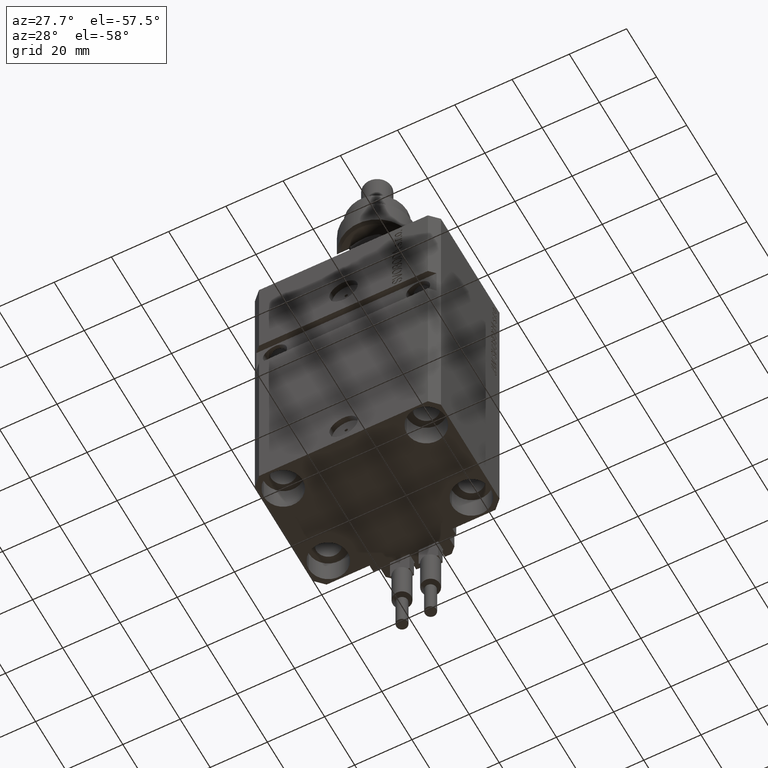
[diagram: clean part render]
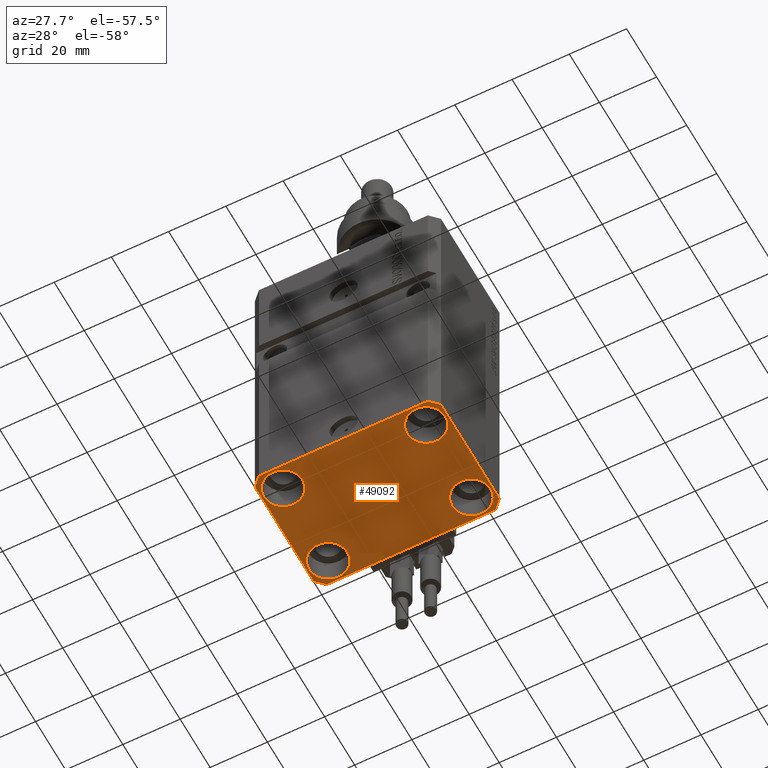
[diagram: same view with one face highlighted and labeled with its STEP entity id]
A machine part, auxiliary view. The second image highlights one B-rep face of the part: STEP entity #49092.
In plain terms, the highlighted planar face has unit normal (0, 0, 1).
Its self-contained STEP definition (entity closure, byte-faithful):
#345 = LINE ( 'NONE', #39127, #19340 ) ;
#823 = VERTEX_POINT ( 'NONE', #2900 ) ;
#1016 = VERTEX_POINT ( 'NONE', #45491 ) ;
#1098 = VERTEX_POINT ( 'NONE', #38277 ) ;
#1769 = FACE_BOUND ( 'NONE', #45170, .T. ) ;
#2019 = EDGE_LOOP ( 'NONE', ( #44913, #29116, #49864, #32896, #20332, #41818, #10734, #4032 ) ) ;
#2529 = LINE ( 'NONE', #45938, #19866 ) ;
#2900 = CARTESIAN_POINT ( 'NONE',  ( 32.49999999999651124, -19.49999999999949196, -107.0000000000000000 ) ) ;
#3351 = DIRECTION ( 'NONE',  ( 1.000000000000000000, 0.000000000000000000, 0.000000000000000000 ) ) ;
#3425 = CARTESIAN_POINT ( 'NONE',  ( -29.49999999999650413, 22.49999999999949907, -107.0000000000000000 ) ) ;
#4032 = ORIENTED_EDGE ( 'NONE', *, *, #46612, .F. ) ;
#4190 = DIRECTION ( 'NONE',  ( -1.000000000000000000, -2.352167425053553784E-16, 0.000000000000000000 ) ) ;
#4330 = CARTESIAN_POINT ( 'NONE',  ( -32.49999999999650413, 19.49999999999949907, -107.0000000000000000 ) ) ;
#4975 = VERTEX_POINT ( 'NONE', #19146 ) ;
#5864 = DIRECTION ( 'NONE',  ( 1.000000000000000000, 0.000000000000000000, -0.000000000000000000 ) ) ;
#6143 = CARTESIAN_POINT ( 'NONE',  ( 32.49999999999651124, -19.49999999999949196, -107.0000000000000000 ) ) ;
#7772 = DIRECTION ( 'NONE',  ( -0.000000000000000000, -0.000000000000000000, 1.000000000000000000 ) ) ;
#8206 = ORIENTED_EDGE ( 'NONE', *, *, #44151, .T. ) ;
#8214 = AXIS2_PLACEMENT_3D ( 'NONE', #22283, #46196, #22543 ) ;
#8545 = AXIS2_PLACEMENT_3D ( 'NONE', #12356, #40100, #44217 ) ;
#8752 = ORIENTED_EDGE ( 'NONE', *, *, #28209, .T. ) ;
#9048 = CARTESIAN_POINT ( 'NONE',  ( -29.49999999999650413, -22.49999999999949907, -107.0000000000000000 ) ) ;
#9379 = CIRCLE ( 'NONE', #8545, 6.749999999958452790 ) ;
#9412 = CARTESIAN_POINT ( 'NONE',  ( 29.49999999999650413, -22.49999999999949196, -107.0000000000000000 ) ) ;
#9445 = DIRECTION ( 'NONE',  ( -0.000000000000000000, -0.000000000000000000, 1.000000000000000000 ) ) ;
#9467 = CARTESIAN_POINT ( 'NONE',  ( -31.75000000002253842, 15.00000000000000000, -107.0000000000000000 ) ) ;
#9599 = CIRCLE ( 'NONE', #16144, 6.750000000022533087 ) ;
#9608 = CARTESIAN_POINT ( 'NONE',  ( -31.75000000004154899, -15.00000000000000000, -107.0000000000000000 ) ) ;
#10567 = DIRECTION ( 'NONE',  ( 0.7071067811865474617, -0.7071067811865474617, 0.000000000000000000 ) ) ;
#10734 = ORIENTED_EDGE ( 'NONE', *, *, #35904, .F. ) ;
#10973 = VERTEX_POINT ( 'NONE', #38311 ) ;
#11018 = DIRECTION ( 'NONE',  ( 1.000000000000000000, 0.000000000000000000, 0.000000000000000000 ) ) ;
#11127 = VERTEX_POINT ( 'NONE', #48312 ) ;
#11134 = VERTEX_POINT ( 'NONE', #39834 ) ;
#11218 = EDGE_CURVE ( 'NONE', #11485, #1016, #38589, .T. ) ;
#11234 = EDGE_CURVE ( 'NONE', #50690, #4975, #27429, .T. ) ;
#11485 = VERTEX_POINT ( 'NONE', #34068 ) ;
#12079 = CARTESIAN_POINT ( 'NONE',  ( -32.49999999999650413, -19.49999999999949907, -107.0000000000000000 ) ) ;
#12356 = CARTESIAN_POINT ( 'NONE',  ( 24.99999999999999645, 15.00000000000000888, -107.0000000000000000 ) ) ;
#12878 = CARTESIAN_POINT ( 'NONE',  ( 18.25000000002253842, -15.00000000000000000, -107.0000000000000000 ) ) ;
#13380 = VERTEX_POINT ( 'NONE', #9467 ) ;
#13692 = EDGE_CURVE ( 'NONE', #4975, #823, #44879, .T. ) ;
#13953 = EDGE_CURVE ( 'NONE', #1098, #48586, #31307, .T. ) ;
#13983 = VERTEX_POINT ( 'NONE', #9608 ) ;
#14007 = DIRECTION ( 'NONE',  ( -0.7071067811865474617, -0.7071067811865474617, 0.000000000000000000 ) ) ;
#14315 = DIRECTION ( 'NONE',  ( -0.7071067811865352493, 0.7071067811865597852, 0.000000000000000000 ) ) ;
#15163 = CARTESIAN_POINT ( 'NONE',  ( -29.49999999999650413, 22.49999999999949907, -107.0000000000000000 ) ) ;
#15325 = CARTESIAN_POINT ( 'NONE',  ( -18.24999999997747224, 15.00000000000000000, -107.0000000000000000 ) ) ;
#15509 = DIRECTION ( 'NONE',  ( 1.000000000000000000, 0.000000000000000000, 0.000000000000000000 ) ) ;
#16144 = AXIS2_PLACEMENT_3D ( 'NONE', #42978, #7772, #24704 ) ;
#17126 = CARTESIAN_POINT ( 'NONE',  ( -25.00000000000000355, -15.00000000000000000, -107.0000000000000000 ) ) ;
#17970 = CARTESIAN_POINT ( 'NONE',  ( -18.24999999995845812, -15.00000000000000000, -107.0000000000000000 ) ) ;
#17985 = VECTOR ( 'NONE', #10567, 1000.000000000000114 ) ;
#18047 = DIRECTION ( 'NONE',  ( 1.000000000000000000, 0.000000000000000000, 0.000000000000000000 ) ) ;
#18510 = CARTESIAN_POINT ( 'NONE',  ( -32.49999999999650413, -19.49999999999949907, -107.0000000000000000 ) ) ;
#19146 = CARTESIAN_POINT ( 'NONE',  ( 29.49999999999650413, -22.49999999999949196, -107.0000000000000000 ) ) ;
#19219 = LINE ( 'NONE', #4330, #49439 ) ;
#19340 = VECTOR ( 'NONE', #4190, 1000.000000000000000 ) ;
#19866 = VECTOR ( 'NONE', #14315, 1000.000000000000000 ) ;
#20332 = ORIENTED_EDGE ( 'NONE', *, *, #11234, .F. ) ;
#21111 = EDGE_CURVE ( 'NONE', #32257, #13983, #29010, .T. ) ;
#21261 = DIRECTION ( 'NONE',  ( 1.000000000000000000, 0.000000000000000000, 0.000000000000000000 ) ) ;
#22136 = CIRCLE ( 'NONE', #8214, 6.750000000041541881 ) ;
#22283 = CARTESIAN_POINT ( 'NONE',  ( -25.00000000000000355, -15.00000000000000000, -107.0000000000000000 ) ) ;
#22543 = DIRECTION ( 'NONE',  ( 1.000000000000000000, 0.000000000000000000, 0.000000000000000000 ) ) ;
#22932 = LINE ( 'NONE', #3425, #48082 ) ;
#23385 = EDGE_CURVE ( 'NONE', #11127, #40140, #345, .T. ) ;
#24704 = DIRECTION ( 'NONE',  ( 1.000000000000000000, 0.000000000000000000, 0.000000000000000000 ) ) ;
#25141 = FACE_OUTER_BOUND ( 'NONE', #2019, .T. ) ;
#25574 = EDGE_CURVE ( 'NONE', #44923, #50690, #26483, .T. ) ;
#26483 = LINE ( 'NONE', #18510, #17985 ) ;
#27173 = VECTOR ( 'NONE', #28935, 1000.000000000000000 ) ;
#27429 = LINE ( 'NONE', #50575, #50080 ) ;
#27546 = ORIENTED_EDGE ( 'NONE', *, *, #45960, .T. ) ;
#27681 = DIRECTION ( 'NONE',  ( -0.000000000000000000, -0.000000000000000000, 1.000000000000000000 ) ) ;
#28209 = EDGE_CURVE ( 'NONE', #13983, #32257, #22136, .T. ) ;
#28935 = DIRECTION ( 'NONE',  ( 0.7071067811865483499, 0.7071067811865466846, 0.000000000000000000 ) ) ;
#29010 = CIRCLE ( 'NONE', #33916, 6.750000000041541881 ) ;
#29116 = ORIENTED_EDGE ( 'NONE', *, *, #32609, .F. ) ;
#29170 = EDGE_LOOP ( 'NONE', ( #38800, #29552 ) ) ;
#29552 = ORIENTED_EDGE ( 'NONE', *, *, #40336, .T. ) ;
#30192 = CARTESIAN_POINT ( 'NONE',  ( -25.00000000000000355, 15.00000000000000000, -107.0000000000000000 ) ) ;
#31307 = CIRCLE ( 'NONE', #50195, 6.749999999977465137 ) ;
#31791 = DIRECTION ( 'NONE',  ( 0.000000000000000000, -1.000000000000000000, 0.000000000000000000 ) ) ;
#32257 = VERTEX_POINT ( 'NONE', #17970 ) ;
#32588 = FACE_BOUND ( 'NONE', #29170, .T. ) ;
#32609 = EDGE_CURVE ( 'NONE', #10973, #11127, #2529, .T. ) ;
#32725 = DIRECTION ( 'NONE',  ( -0.000000000000000000, -0.000000000000000000, 1.000000000000000000 ) ) ;
#32896 = ORIENTED_EDGE ( 'NONE', *, *, #13692, .F. ) ;
#33088 = CARTESIAN_POINT ( 'NONE',  ( 0.000000000000000000, 0.000000000000000000, -107.0000000000000000 ) ) ;
#33278 = CIRCLE ( 'NONE', #49732, 6.750000000022533087 ) ;
#33336 = FACE_BOUND ( 'NONE', #38475, .T. ) ;
#33862 = EDGE_LOOP ( 'NONE', ( #43956, #41455 ) ) ;
#33916 = AXIS2_PLACEMENT_3D ( 'NONE', #17126, #9445, #21261 ) ;
#34068 = CARTESIAN_POINT ( 'NONE',  ( 18.25000000004154543, 15.00000000000000888, -107.0000000000000000 ) ) ;
#34301 = DIRECTION ( 'NONE',  ( -0.000000000000000000, -0.000000000000000000, 1.000000000000000000 ) ) ;
#34774 = CIRCLE ( 'NONE', #35618, 6.749999999977465137 ) ;
#35618 = AXIS2_PLACEMENT_3D ( 'NONE', #38791, #46005, #3351 ) ;
#35904 = EDGE_CURVE ( 'NONE', #11134, #44923, #19219, .T. ) ;
#38277 = CARTESIAN_POINT ( 'NONE',  ( 31.74999999997746869, -15.00000000000000000, -107.0000000000000000 ) ) ;
#38311 = CARTESIAN_POINT ( 'NONE',  ( 32.49999999999702993, 19.49999999999945999, -107.0000000000000000 ) ) ;
#38475 = EDGE_LOOP ( 'NONE', ( #8752, #43277 ) ) ;
#38589 = CIRCLE ( 'NONE', #45164, 6.749999999958452790 ) ;
#38791 = CARTESIAN_POINT ( 'NONE',  ( 25.00000000000000355, -15.00000000000000000, -107.0000000000000000 ) ) ;
#38800 = ORIENTED_EDGE ( 'NONE', *, *, #11218, .T. ) ;
#39127 = CARTESIAN_POINT ( 'NONE',  ( 29.49999999999707967, 22.49999999999951328, -107.0000000000000000 ) ) ;
#39520 = CARTESIAN_POINT ( 'NONE',  ( 24.99999999999999645, 15.00000000000000888, -107.0000000000000000 ) ) ;
#39834 = CARTESIAN_POINT ( 'NONE',  ( -32.49999999999650413, 19.49999999999949907, -107.0000000000000000 ) ) ;
#40022 = AXIS2_PLACEMENT_3D ( 'NONE', #33088, #48786, #5864 ) ;
#40100 = DIRECTION ( 'NONE',  ( -0.000000000000000000, -0.000000000000000000, 1.000000000000000000 ) ) ;
#40140 = VERTEX_POINT ( 'NONE', #15163 ) ;
#40336 = EDGE_CURVE ( 'NONE', #1016, #11485, #9379, .T. ) ;
#40815 = PLANE ( 'NONE',  #40022 ) ;
#40955 = CARTESIAN_POINT ( 'NONE',  ( 25.00000000000000355, -15.00000000000000000, -107.0000000000000000 ) ) ;
#41455 = ORIENTED_EDGE ( 'NONE', *, *, #13953, .T. ) ;
#41818 = ORIENTED_EDGE ( 'NONE', *, *, #25574, .F. ) ;
#42115 = LINE ( 'NONE', #6143, #46461 ) ;
#42978 = CARTESIAN_POINT ( 'NONE',  ( -25.00000000000000355, 15.00000000000000000, -107.0000000000000000 ) ) ;
#43277 = ORIENTED_EDGE ( 'NONE', *, *, #21111, .T. ) ;
#43380 = DIRECTION ( 'NONE',  ( 1.000000000000000000, 1.176083712526788232E-16, 0.000000000000000000 ) ) ;
#43956 = ORIENTED_EDGE ( 'NONE', *, *, #49731, .T. ) ;
#44151 = EDGE_CURVE ( 'NONE', #13380, #46328, #33278, .T. ) ;
#44217 = DIRECTION ( 'NONE',  ( 1.000000000000000000, 0.000000000000000000, 0.000000000000000000 ) ) ;
#44879 = LINE ( 'NONE', #9412, #27173 ) ;
#44913 = ORIENTED_EDGE ( 'NONE', *, *, #23385, .F. ) ;
#44923 = VERTEX_POINT ( 'NONE', #12079 ) ;
#45164 = AXIS2_PLACEMENT_3D ( 'NONE', #39520, #27681, #11018 ) ;
#45170 = EDGE_LOOP ( 'NONE', ( #8206, #27546 ) ) ;
#45429 = FACE_BOUND ( 'NONE', #33862, .T. ) ;
#45461 = DIRECTION ( 'NONE',  ( 1.334402673828349134E-14, 1.000000000000000000, 0.000000000000000000 ) ) ;
#45491 = CARTESIAN_POINT ( 'NONE',  ( 31.74999999995845101, 15.00000000000000888, -107.0000000000000000 ) ) ;
#45938 = CARTESIAN_POINT ( 'NONE',  ( 32.49999999999702993, 19.49999999999945999, -107.0000000000000000 ) ) ;
#45960 = EDGE_CURVE ( 'NONE', #46328, #13380, #9599, .T. ) ;
#46005 = DIRECTION ( 'NONE',  ( -0.000000000000000000, -0.000000000000000000, 1.000000000000000000 ) ) ;
#46196 = DIRECTION ( 'NONE',  ( -0.000000000000000000, -0.000000000000000000, 1.000000000000000000 ) ) ;
#46328 = VERTEX_POINT ( 'NONE', #15325 ) ;
#46461 = VECTOR ( 'NONE', #45461, 1000.000000000000000 ) ;
#46612 = EDGE_CURVE ( 'NONE', #40140, #11134, #22932, .T. ) ;
#47895 = EDGE_CURVE ( 'NONE', #823, #10973, #42115, .T. ) ;
#48082 = VECTOR ( 'NONE', #14007, 1000.000000000000114 ) ;
#48312 = CARTESIAN_POINT ( 'NONE',  ( 29.49999999999707967, 22.49999999999951328, -107.0000000000000000 ) ) ;
#48586 = VERTEX_POINT ( 'NONE', #12878 ) ;
#48786 = DIRECTION ( 'NONE',  ( 0.000000000000000000, 0.000000000000000000, 1.000000000000000000 ) ) ;
#49092 = ADVANCED_FACE ( 'NONE', ( #33336, #45429, #32588, #1769, #25141 ), #40815, .F. ) ;
#49439 = VECTOR ( 'NONE', #31791, 1000.000000000000000 ) ;
#49731 = EDGE_CURVE ( 'NONE', #48586, #1098, #34774, .T. ) ;
#49732 = AXIS2_PLACEMENT_3D ( 'NONE', #30192, #34301, #15509 ) ;
#49864 = ORIENTED_EDGE ( 'NONE', *, *, #47895, .F. ) ;
#50080 = VECTOR ( 'NONE', #43380, 1000.000000000000000 ) ;
#50195 = AXIS2_PLACEMENT_3D ( 'NONE', #40955, #32725, #18047 ) ;
#50575 = CARTESIAN_POINT ( 'NONE',  ( -29.49999999999650413, -22.49999999999949907, -107.0000000000000000 ) ) ;
#50690 = VERTEX_POINT ( 'NONE', #9048 ) ;